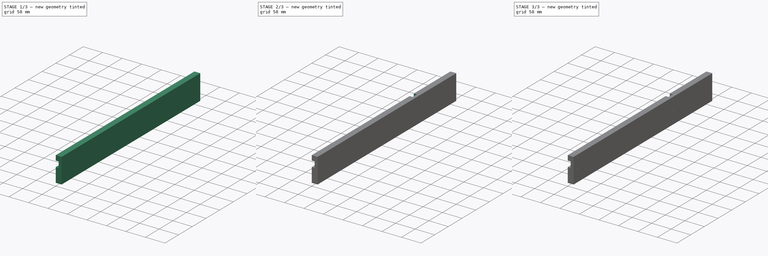
[diagram: build sequence overview — one tinted view per stage of 3, left to right]
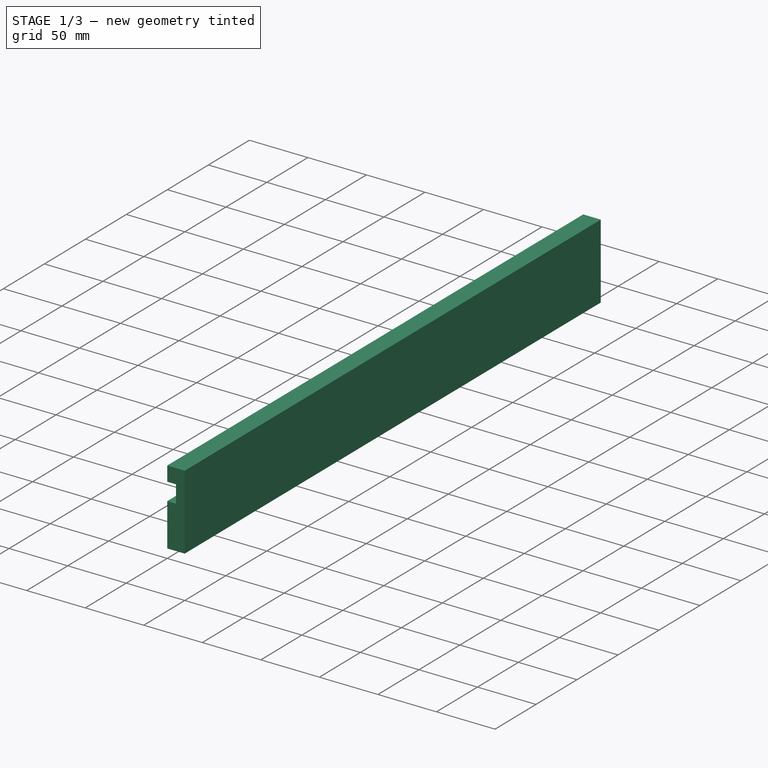
[diagram: stage 1 of 3 — iso view after this stage's code; geometry added in this stage tinted green]
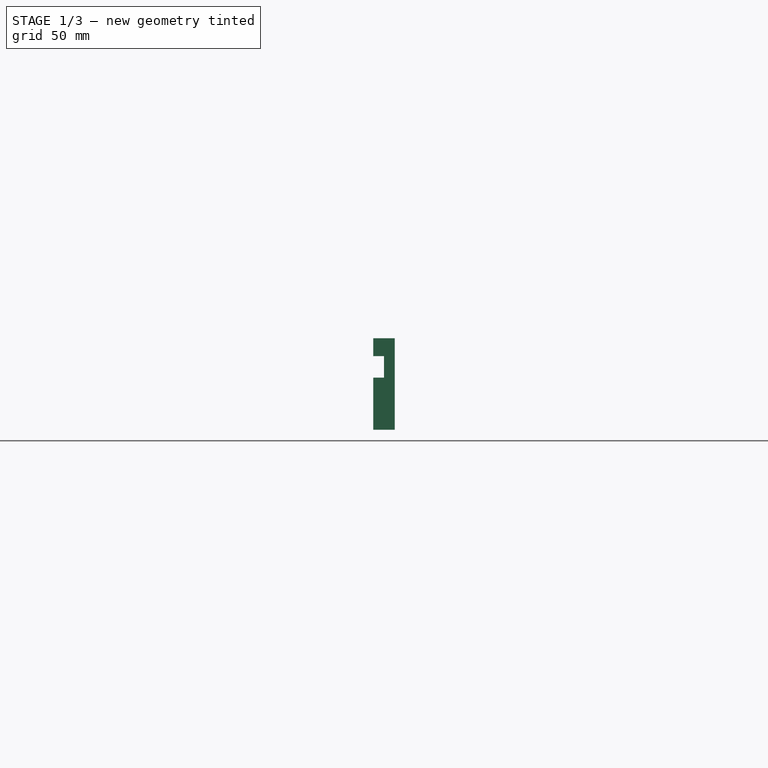
[diagram: stage 1 of 3 — front view after this stage's code; geometry added in this stage tinted green]
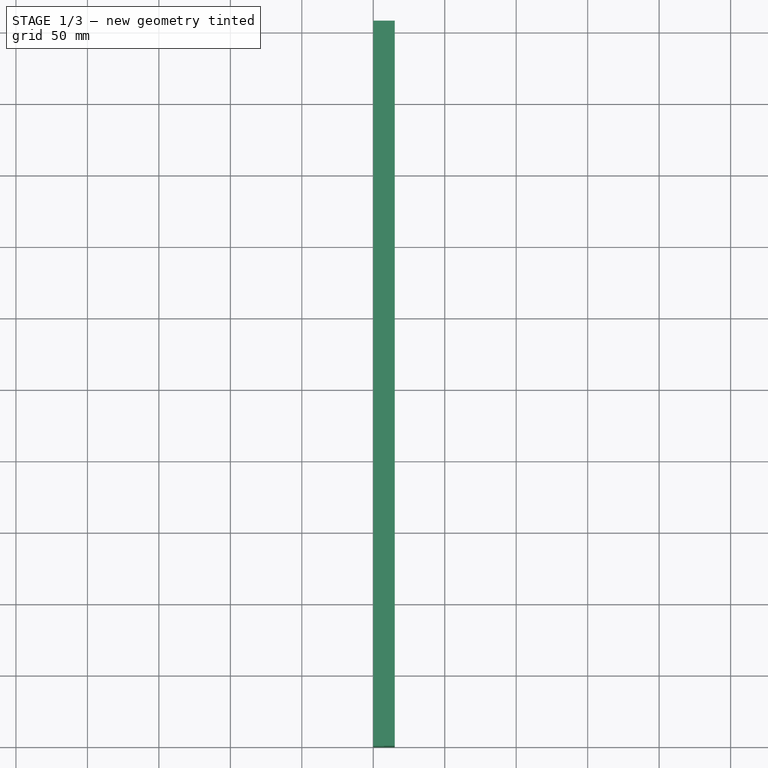
[diagram: stage 1 of 3 — top view after this stage's code; geometry added in this stage tinted green]
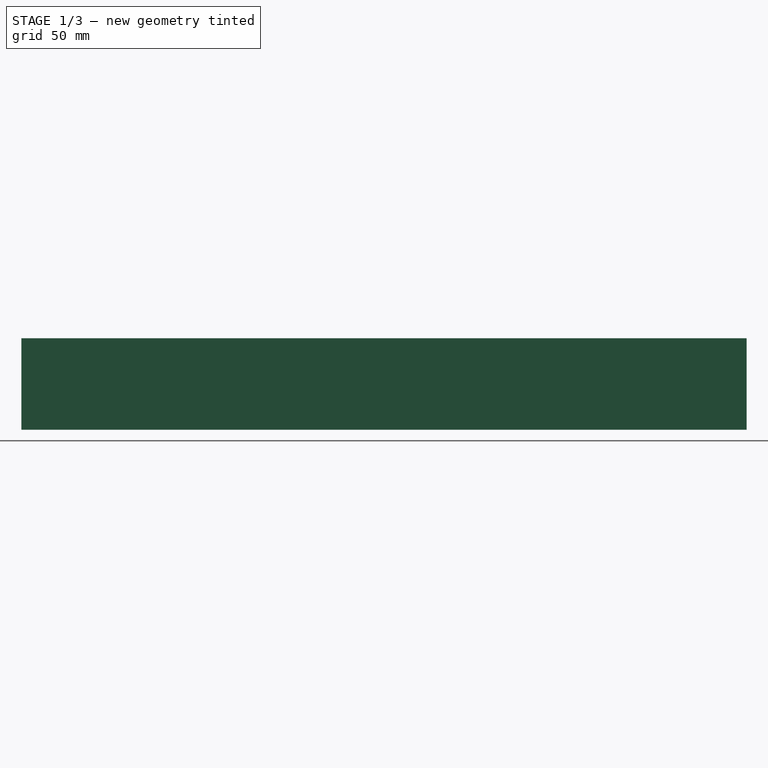
[diagram: stage 1 of 3 — right view after this stage's code; geometry added in this stage tinted green]
FCSTD DOCUMENT  (FreeCAD 0.19R24291 (Git))
Label: OuterRightWall
License: All rights reserved
LicenseURL: http://en.wikipedia.org/wiki/All_rights_reserved
objects: Sketcher::SketchObject×7, PartDesign::Pocket×6, PartDesign::CoordinateSystem×2, App::FeaturePython×1, PartDesign::Pad×1, PartDesign::LinearPattern×1, PartDesign::MultiTransform×1, PartDesign::Body×1, App::Part×1
note: 26 computed .brp shape members not serialized (recipe doc carries the construction recipe); baked Part::Feature solids carry a one-line shape summary decoded from their .brp

FEATURE [PartDesign::CoordinateSystem] LCS_0
  AttacherType = Attacher::AttachEngine3D
  MapMode = 2
  Support = -> [X_Axis]
FEATURE [PartDesign::CoordinateSystem] LCS_0001
  AttacherType = Attacher::AttachEngine3D
  MapMode = 2
  Support = -> [X_Axis001]
FEATURE [Sketcher::SketchObject] Sketch
  FullyConstrained = true
  MapMode = 5
  Placement = pos=(0,0,0) rot=(0.57735,0.57735,0.57735;2.0944rad)
  Support = -> [YZ_Plane001]
  expr: Constraints[10] = <<Attributes>>.DrawerHeight_DH
  expr: Constraints[9] = <<Attributes>>.DrawerDepth_DD + <<Attributes>>.WallThickness_WT / 2
  sketch-geometry (4):
    g0: LineSegment StartX=0 StartY=0 StartZ=0 EndX=507.5 EndY=0 EndZ=0
    g1: LineSegment StartX=507.5 StartY=0 StartZ=0 EndX=507.5 EndY=64 EndZ=0
    g2: LineSegment StartX=507.5 StartY=64 StartZ=0 EndX=0 EndY=64 EndZ=0
    g3: LineSegment StartX=0 StartY=64 StartZ=0 EndX=0 EndY=0 EndZ=0
  constraints (11):
    c: Coincident(g0,g1)
    c: Coincident(g1,g2)
    c: Coincident(g2,g3)
    c: Coincident(g3,g0)
    c: Horizontal(g0)
    c: Horizontal(g2)
    c: Vertical(g1)
    c: Vertical(g3)
    c: Coincident(g0,g-1)
    c: Distance(g0) = 507.5
    c: DistanceY(g0,g2) = 64
FEATURE [App::FeaturePython] PropertyBag  label="Attributes"  # WARN: FeaturePython — macro-defined, semantics opaque (R4)
  BackWidth = 395.8
  Back_Space = 134.2
  BottomDepth = 365.8
  BottomWidth = 365.8
  Bottom_Height_BH = 4
  Bottom_Space_Height = 20
  Box_Tolerance = 0.2
  Boxes_Depth = 5
  Boxes_Height = 40
  Boxes_Width = 5
  CableChannelHight = 15
  CableChannelRadius = 2
  CustomPropertyGroups = shape | attributes
  DrawerDepth_DD = 500
  DrawerHeight_DH = 64
  DrawerWidth_DW = 410.8
  InnerWallDepth = 358.3
  ScrewPreWhole = 3
  ScrewPreWholeDepth = 20
  WallThickness_WT = 15
  expr: BottomDepth = Boxes_Depth * 70mm + WallThickness_WT + Box_Tolerance * (Boxes_Width - 1)
  expr: DrawerHeight_DH = Boxes_Height + Bottom_Height_BH + Bottom_Space_Height
  expr: BackWidth = DrawerWidth_DW - WallThickness_WT
  expr: DrawerWidth_DW = Boxes_Width * 70mm + WallThickness_WT * 4 + Box_Tolerance * (Boxes_Width - 1)
  expr: BottomWidth = Boxes_Width * 70mm + WallThickness_WT + Box_Tolerance * (Boxes_Width - 1)
  expr: DrawerDepth_DD = Boxes_Depth * 70mm + WallThickness_WT + Back_Space + Box_Tolerance * (Boxes_Width - 1)
  expr: InnerWallDepth = Boxes_Depth * 70mm + WallThickness_WT * 0.5 + Box_Tolerance * (Boxes_Width - 1)
FEATURE [PartDesign::Pad] Pad
  Direction = (1,1,1)
  Length = 15
  Length2 = 100
  Placement = pos=(0,0,0) rot=(0.57735,0.57735,0.57735;2.0944rad)
  Profile = -> Sketch
  Type = 0
  expr: Length = <<Attributes>>.WallThickness_WT
FEATURE [Sketcher::SketchObject] Sketch001
  FullyConstrained = true
  MapMode = 5
  Placement = pos=(-6.34e-14,0,0) rot=(0.57735,0.57735,-0.57735;4.18879rad)
  Support = -> [Pad]
  expr: Constraints[17] = (<<Attributes>>.DrawerHeight_DH - <<Attributes>>.WallThickness_WT - <<Attributes>>.Bottom_Space_Height - <<Attributes>>.Bottom_Height_BH) / 2
  expr: Constraints[16] = <<Attributes>>.DrawerHeight_DH - <<Attributes>>.WallThickness_WT / 2
  expr: Constraints[7] = <<Attributes>>.DrawerDepth_DD + <<Attributes>>.WallThickness_WT / 2
  expr: Constraints[6] = <<Attributes>>.CableChannelHight
  sketch-geometry (6):
    g0: LineSegment StartX=0 StartY=-36.5 StartZ=0 EndX=507.5 EndY=-36.5 EndZ=0
    g1: LineSegment StartX=507.5 StartY=-36.5 StartZ=0 EndX=507.5 EndY=-51.5 EndZ=0
    g2: LineSegment StartX=507.5 StartY=-51.5 StartZ=0 EndX=0 EndY=-51.5 EndZ=0
    g3: LineSegment StartX=0 StartY=-51.5 StartZ=0 EndX=0 EndY=-44 EndZ=0
    g4: LineSegment StartX=0 StartY=-44 StartZ=0 EndX=0 EndY=-36.5 EndZ=0
    g5: LineSegment StartX=0 StartY=0 StartZ=0 EndX=0 EndY=-56.5 EndZ=0
  constraints (18):
    c: Coincident(g0,g1)
    c: Coincident(g1,g2)
    c: Horizontal(g0)
    c: Horizontal(g2)
    c: Vertical(g1)
    c: PointOnObject(g0,g-2)
    c: DistanceY(g2,g0) = 15
    c: DistanceX(g0,g0) = 507.5
    c: Coincident(g2,g3)
    c: Vertical(g3)
    c: Coincident(g3,g4)
    c: Coincident(g4,g0)
    c: Vertical(g4)
    c: Equal(g3,g4)
    c: Coincident(g5,g-1)
    c: Vertical(g5)
    c: Distance(g5) = 56.5
    c: DistanceY(g5,g3) = 12.5
FEATURE [PartDesign::Pocket] Pocket
  BaseFeature = -> Pad
  Length = 7.5
  Length2 = 100
  Placement = pos=(0,0,0) rot=(0.57735,0.57735,0.57735;2.0944rad)
  Profile = -> Sketch001
  Type = 0
  expr: Length = <<Attributes>>.WallThickness_WT / 2
FEATURE [Sketcher::SketchObject] Sketch002
  FullyConstrained = true
  MapMode = 5
  Placement = pos=(-1.269e-13,0,0) rot=(-0.57735,-0.57735,0.57735;2.0944rad)
  Support = -> [Pocket]
  expr: Constraints[23] = (<<Attributes>>.WallThickness_WT / 2 + 70mm + <<Attributes>>.Box_Tolerance / 2) / 2 - <<Attributes>>.CableChannelHight / 2
  expr: Constraints[22] = <<Attributes>>.DrawerHeight_DH - <<Attributes>>.WallThickness_WT / 2 - (<<Attributes>>.DrawerHeight_DH - <<Attributes>>.WallThickness_WT - <<Attributes>>.Bottom_Space_Height - <<Attributes>>.Bottom_Height_BH) / 2 - <<Attributes>>.CableChannelHight / 2
  expr: Constraints[21] = <<Attributes>>.CableChannelRadius
  expr: Constraints[6] = <<Attributes>>.CableChannelHight
  sketch-geometry (8):
    g0: LineSegment StartX=31.3 StartY=0 StartZ=0 EndX=46.3 EndY=0 EndZ=0
    g1: LineSegment StartX=46.3 StartY=0 StartZ=0 EndX=46.3 EndY=-34.5 EndZ=0
    g2: LineSegment StartX=31.3 StartY=-34.5 StartZ=0 EndX=31.3 EndY=0 EndZ=0
    g3: ArcOfCircle CenterX=29.3 CenterY=-34.5 CenterZ=0 NormalX=0 NormalY=0 NormalZ=1 AngleXU=0 Radius=2 StartAngle=4.71239 EndAngle=6.28319
    g4: ArcOfCircle CenterX=48.3 CenterY=-34.5 CenterZ=0 NormalX=0 NormalY=0 NormalZ=1 AngleXU=0 Radius=2 StartAngle=3.14159 EndAngle=4.71239
    g5: LineSegment StartX=46.3 StartY=-34.5 StartZ=0 EndX=48.3 EndY=-34.5 EndZ=0
    g6: LineSegment StartX=29.3 StartY=-34.5 StartZ=0 EndX=31.3 EndY=-34.5 EndZ=0
    g7: LineSegment StartX=29.3 StartY=-36.5 StartZ=0 EndX=48.3 EndY=-36.5 EndZ=0
  constraints (24):
    c: Coincident(g0,g1)
    c: Coincident(g2,g0)
    c: Horizontal(g0)
    c: Vertical(g1)
    c: Vertical(g2)
    c: PointOnObject(g0,g-1)
    c: Distance(g0) = 15
    c: Coincident(g3,g2)
    c: Coincident(g4,g1)
    c: Angle(g4) = 1.5708
    c: Angle(g3) = 1.5708
    c: Coincident(g5,g1)
    c: Coincident(g5,g4)
    c: Perpendicular(g1,g5)
    c: Coincident(g6,g3)
    c: Coincident(g6,g2)
    c: Perpendicular(g2,g6)
    c: Equal(g6,g5)
    c: Coincident(g7,g3)
    c: Horizontal(g7)
    c: Coincident(g7,g4)
    c: Radius(g3) = 2
    c: DistanceY(g3,g0) = 36.5
    c: DistanceX(g-1,g0) = 31.3
FEATURE [PartDesign::Pocket] Pocket001
  BaseFeature = -> Pocket
  Length = 3.75
  Length2 = 100
  Placement = pos=(0,0,0) rot=(0.57735,0.57735,0.57735;2.0944rad)
  Profile = -> Sketch002
  Type = 0
  expr: Length = <<Attributes>>.WallThickness_WT / 4
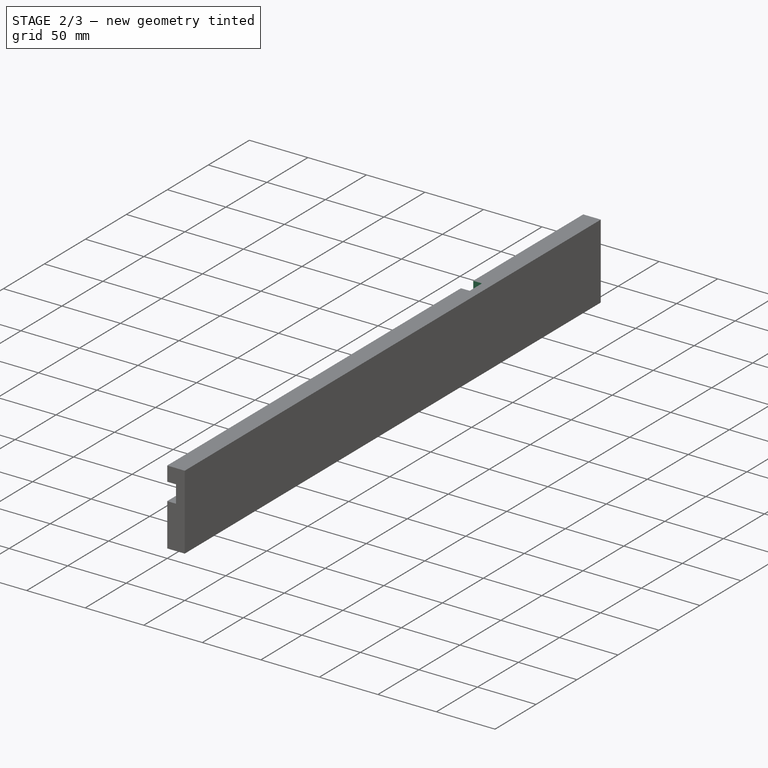
[diagram: stage 2 of 3 — iso view after this stage's code; geometry added in this stage tinted green]
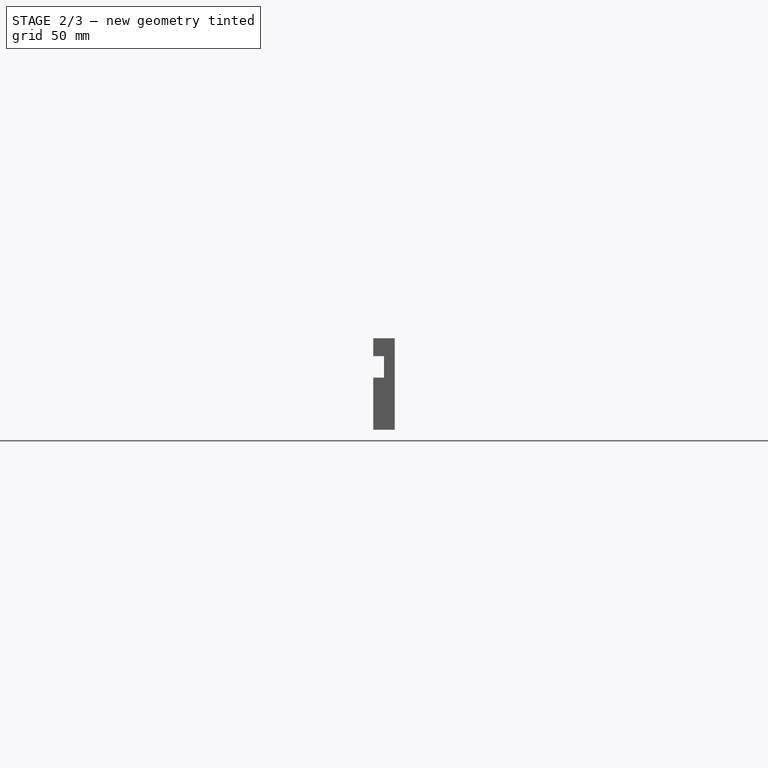
[diagram: stage 2 of 3 — front view after this stage's code; geometry added in this stage tinted green]
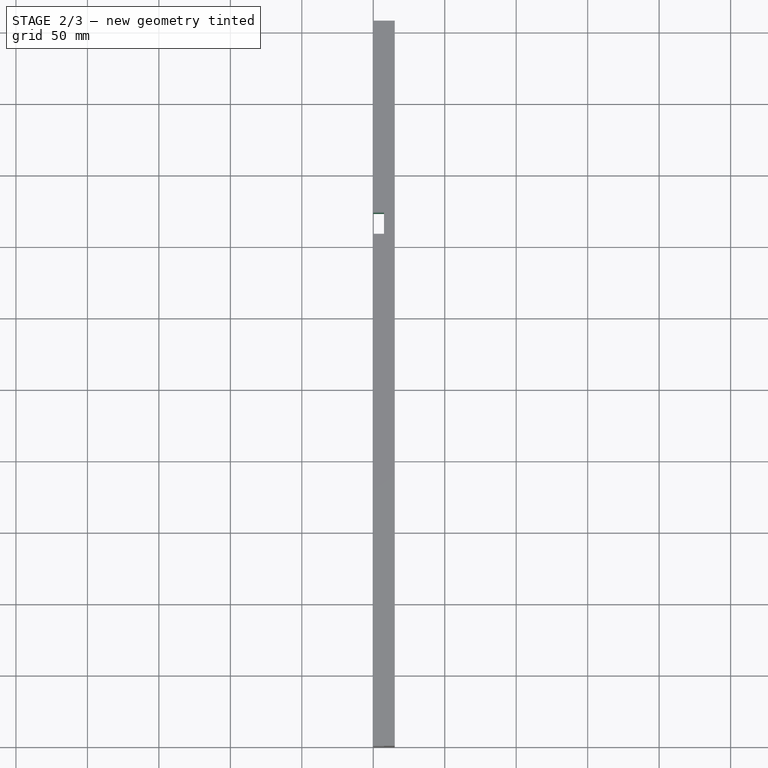
[diagram: stage 2 of 3 — top view after this stage's code; geometry added in this stage tinted green]
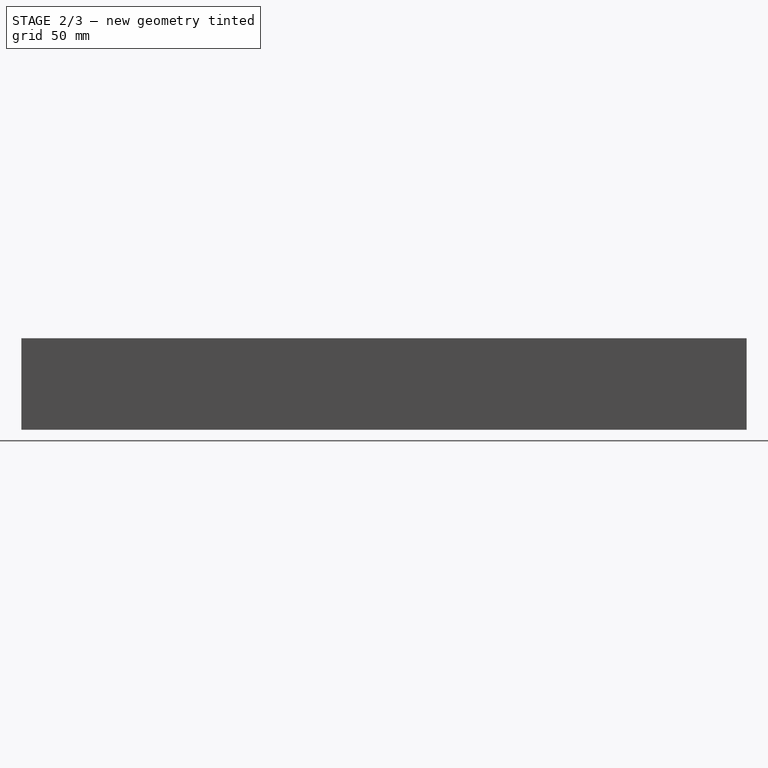
[diagram: stage 2 of 3 — right view after this stage's code; geometry added in this stage tinted green]
FEATURE [PartDesign::LinearPattern] LinearPattern
  Direction = -> Sketch002 [H_Axis]
  Length = 280.8
  Occurrences = 5
  Placement = pos=(0,0,0) rot=(0.57735,0.57735,0.57735;2.0944rad)
  expr: Length = (<<Attributes>>.Boxes_Depth - 1) * (70mm + <<Attributes>>.Box_Tolerance)
  expr: Occurrences = <<Attributes>>.Boxes_Depth
FEATURE [PartDesign::MultiTransform] MultiTransform
  BaseFeature = -> Pocket001
  Originals = -> [Pocket001]
  Placement = pos=(0,0,0) rot=(0.57735,0.57735,0.57735;2.0944rad)
  Transformations = -> [LinearPattern]
FEATURE [Sketcher::SketchObject] Sketch003
  FullyConstrained = true
  MapMode = 5
  Placement = pos=(-1.903e-13,0,0) rot=(-0.57735,-0.57735,0.57735;2.0944rad)
  Support = -> [MultiTransform]
  expr: Constraints[10] = <<Attributes>>.InnerWallDepth
  expr: Constraints[9] = <<Attributes>>.DrawerHeight_DH
  expr: Constraints[11] = <<Attributes>>.WallThickness_WT + <<Attributes>>.InnerWallDepth
  sketch-geometry (4):
    g0: LineSegment StartX=358.3 StartY=0 StartZ=0 EndX=373.3 EndY=0 EndZ=0
    g1: LineSegment StartX=373.3 StartY=0 StartZ=0 EndX=373.3 EndY=-64 EndZ=0
    g2: LineSegment StartX=373.3 StartY=-64 StartZ=0 EndX=358.3 EndY=-64 EndZ=0
    g3: LineSegment StartX=358.3 StartY=-64 StartZ=0 EndX=358.3 EndY=0 EndZ=0
  constraints (12):
    c: Coincident(g0,g1)
    c: Coincident(g1,g2)
    c: Coincident(g2,g3)
    c: Coincident(g3,g0)
    c: Horizontal(g0)
    c: Horizontal(g2)
    c: Vertical(g1)
    c: Vertical(g3)
    c: PointOnObject(g0,g-1)
    c: DistanceY(g2,g0) = 64
    c: DistanceX(g-1,g0) = 358.3
    c: DistanceX(g-1,g0) = 373.3
FEATURE [PartDesign::Pocket] Pocket002
  BaseFeature = -> MultiTransform
  Length = 7.5
  Length2 = 100
  Placement = pos=(0,0,0) rot=(0.57735,0.57735,0.57735;2.0944rad)
  Profile = -> Sketch003
  Type = 0
  expr: Length = <<Attributes>>.WallThickness_WT / 2
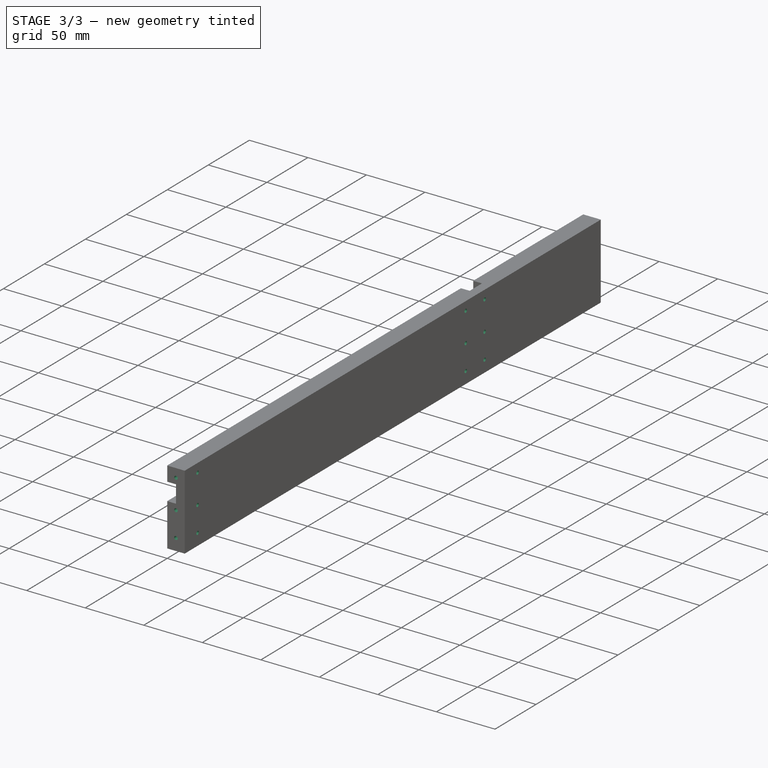
[diagram: stage 3 of 3 — iso view after this stage's code; geometry added in this stage tinted green]
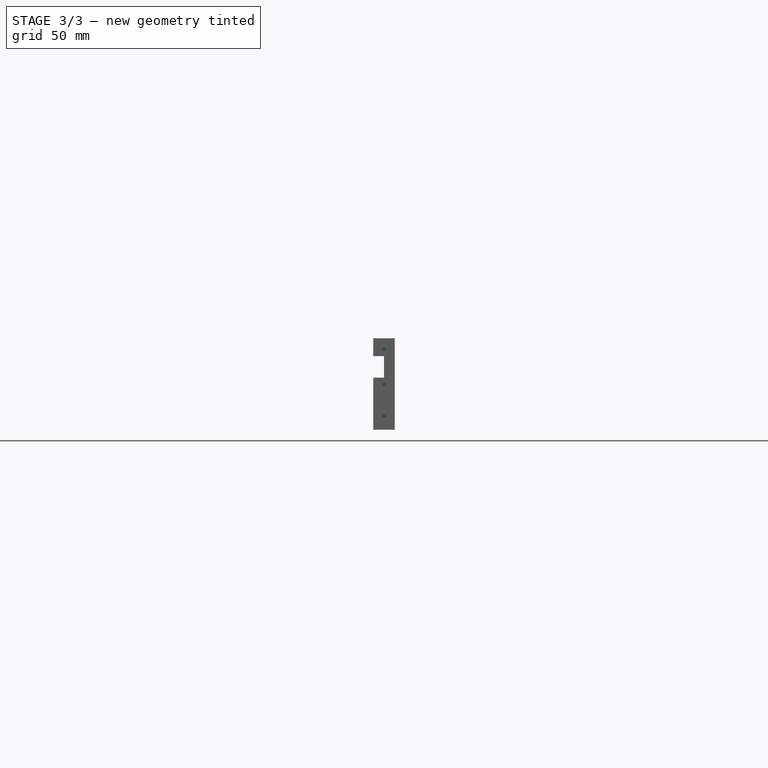
[diagram: stage 3 of 3 — front view after this stage's code; geometry added in this stage tinted green]
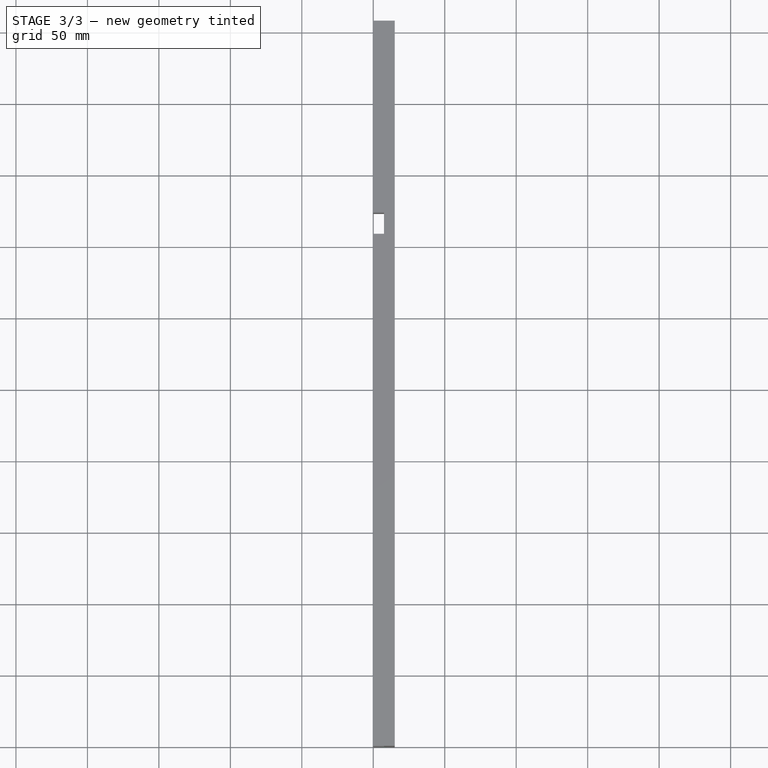
[diagram: stage 3 of 3 — top view after this stage's code; geometry added in this stage tinted green]
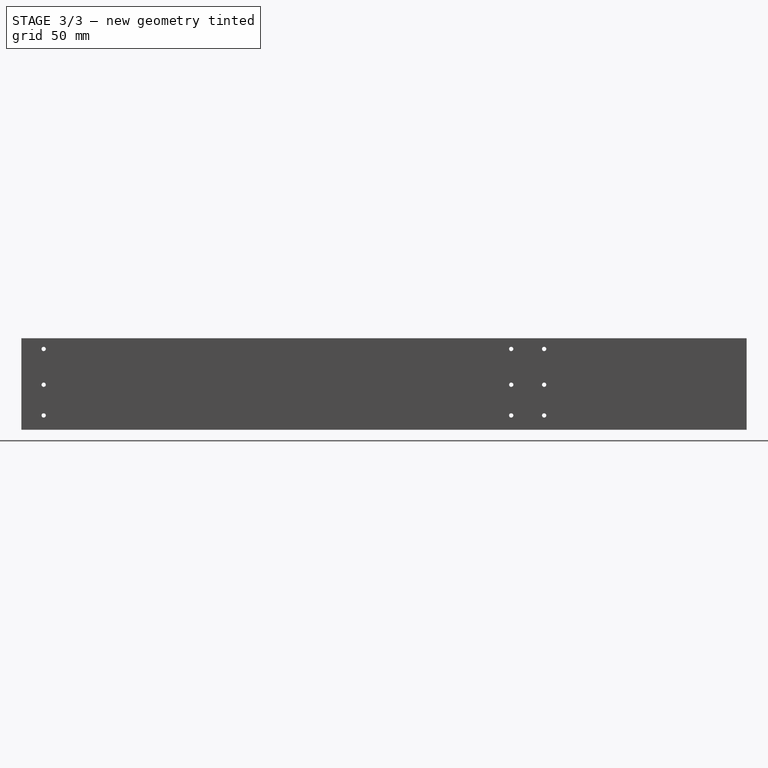
[diagram: stage 3 of 3 — right view after this stage's code; geometry added in this stage tinted green]
FEATURE [Sketcher::SketchObject] Sketch004
  FullyConstrained = true
  MapMode = 5
  Placement = pos=(-2.538e-13,0,0) rot=(-0.57735,-0.57735,0.57735;2.0944rad)
  Support = -> [Pocket002]
  expr: Constraints[12] = <<Attributes>>.DrawerHeight_DH - <<Attributes>>.WallThickness_WT - <<Attributes>>.Bottom_Space_Height - <<Attributes>>.Bottom_Height_BH
  expr: Constraints[11] = <<Attributes>>.ScrewPreWhole / 2
  expr: Constraints[5] = <<Attributes>>.InnerWallDepth + <<Attributes>>.WallThickness_WT / 2
  expr: Constraints[4] = <<Attributes>>.Bottom_Space_Height / 2
  expr: Constraints[3] = <<Attributes>>.DrawerHeight_DH - <<Attributes>>.WallThickness_WT / 2
  sketch-geometry (5):
    g0: LineSegment StartX=365.8 StartY=-10 StartZ=0 EndX=365.8 EndY=-31.5 EndZ=0
    g1: LineSegment StartX=365.8 StartY=-31.5 StartZ=0 EndX=365.8 EndY=-56.5 EndZ=0
    g2: Circle CenterX=365.8 CenterY=-10 CenterZ=0 NormalX=0 NormalY=0 NormalZ=1 AngleXU=0 Radius=1.5
    g3: Circle CenterX=365.8 CenterY=-31.5 CenterZ=0 NormalX=0 NormalY=0 NormalZ=1 AngleXU=0 Radius=1.5
    g4: Circle CenterX=365.8 CenterY=-56.5 CenterZ=0 NormalX=0 NormalY=0 NormalZ=1 AngleXU=0 Radius=1.5
  constraints (13):
    c: Coincident(g0,g1)
    c: Vertical(g1)
    c: Vertical(g0)
    c: DistanceY(g1,g-1) = 56.5
    c: DistanceY(g0,g-1) = 10
    c: DistanceX(g-1,g0) = 365.8
    c: Coincident(g2,g0)
    c: Coincident(g3,g0)
    c: Coincident(g4,g1)
    c: Equal(g4,g3)
    c: Equal(g3,g2)
    c: Radius(g2) = 1.5
    c: DistanceY(g1,g1) = 25
FEATURE [PartDesign::Pocket] Pocket003
  BaseFeature = -> Pocket002
  Length = 5
  Length2 = 100
  Midplane = true
  Placement = pos=(0,0,0) rot=(0.57735,0.57735,0.57735;2.0944rad)
  Profile = -> Sketch004
  Type = 1
FEATURE [Sketcher::SketchObject] Sketch005
  FullyConstrained = true
  MapMode = 5
  Placement = pos=(0,-5.68e-14,0) rot=(0.57735,0.57735,-0.57735;2.0944rad)
  Support = -> [Pocket003]
  expr: Constraints[3] = <<Attributes>>.WallThickness_WT / 2
  expr: Constraints[4] = <<Attributes>>.Bottom_Space_Height / 2
  expr: Constraints[5] = <<Attributes>>.DrawerHeight_DH - <<Attributes>>.WallThickness_WT / 2
  expr: Constraints[11] = <<Attributes>>.ScrewPreWhole / 2
  expr: Constraints[12] = <<Attributes>>.DrawerHeight_DH - <<Attributes>>.WallThickness_WT - <<Attributes>>.Bottom_Space_Height - <<Attributes>>.Bottom_Height_BH
  sketch-geometry (5):
    g0: LineSegment StartX=-10 StartY=7.5 StartZ=0 EndX=-31.5 EndY=7.5 EndZ=0
    g1: LineSegment StartX=-31.5 StartY=7.5 StartZ=0 EndX=-56.5 EndY=7.5 EndZ=0
    g2: Circle CenterX=-56.5 CenterY=7.5 CenterZ=0 NormalX=0 NormalY=0 NormalZ=1 AngleXU=0 Radius=1.5
    g3: Circle CenterX=-31.5 CenterY=7.5 CenterZ=0 NormalX=0 NormalY=0 NormalZ=1 AngleXU=0 Radius=1.5
    g4: Circle CenterX=-10 CenterY=7.5 CenterZ=0 NormalX=0 NormalY=0 NormalZ=1 AngleXU=0 Radius=1.5
  constraints (13):
    c: Horizontal(g0)
    c: Coincident(g0,g1)
    c: Horizontal(g1)
    c: DistanceY(g-1,g0) = 7.5
    c: DistanceX(g0,g-1) = 10
    c: DistanceX(g1,g-1) = 56.5
    c: Coincident(g2,g1)
    c: Coincident(g3,g0)
    c: Coincident(g4,g0)
    c: Equal(g4,g3)
    c: Equal(g3,g2)
    c: Radius(g2) = 1.5
    c: Distance(g1) = 25
FEATURE [PartDesign::Pocket] Pocket004
  BaseFeature = -> Pocket003
  Length = 20
  Length2 = 100
  Placement = pos=(0,0,0) rot=(0.57735,0.57735,0.57735;2.0944rad)
  Profile = -> Sketch005
  Type = 0
  expr: Length = <<Attributes>>.ScrewPreWholeDepth
FEATURE [Sketcher::SketchObject] Sketch006
  FullyConstrained = true
  MapMode = 5
  Placement = pos=(-3.172e-13,0,0) rot=(-0.57735,-0.57735,0.57735;2.0944rad)
  Support = -> [Pocket003]
  expr: Constraints[8] = <<Attributes>>.DrawerHeight_DH - <<Attributes>>.WallThickness_WT - <<Attributes>>.Bottom_Space_Height - <<Attributes>>.Bottom_Height_BH
  expr: Constraints[9] = <<Attributes>>.Bottom_Space_Height / 2
  expr: Constraints[10] = <<Attributes>>.DrawerHeight_DH - <<Attributes>>.WallThickness_WT / 2
  expr: Constraints[11] = <<Attributes>>.ScrewPreWhole / 2
  expr: Constraints[12] = ((<<Attributes>>.WallThickness_WT / 2 + 70mm + <<Attributes>>.Box_Tolerance / 2) / 2 - <<Attributes>>.CableChannelHight / 2) / 2
  expr: Constraints[25] = (<<Attributes>>.WallThickness_WT / 2 + 70mm + <<Attributes>>.Box_Tolerance / 2) / 2 - <<Attributes>>.CableChannelHight / 2 + <<Attributes>>.CableChannelHight / 2 + (<<Attributes>>.Box_Tolerance + 70mm) * (<<Attributes>>.Boxes_Depth - 1) + ((<<Attributes>>.WallThickness_WT / 2 + 70mm + <<Attributes>>.Box_Tolerance / 2) / 2 - <<Attributes>>.CableChannelHight / 2) / 2 + <<Attributes>>.CableChannelHight / 2
  sketch-geometry (10):
    g0: LineSegment StartX=15.65 StartY=-10 StartZ=0 EndX=15.65 EndY=-31.5 EndZ=0
    g1: LineSegment StartX=15.65 StartY=-31.5 StartZ=0 EndX=15.65 EndY=-56.5 EndZ=0
    g2: Circle CenterX=15.65 CenterY=-10 CenterZ=0 NormalX=0 NormalY=0 NormalZ=1 AngleXU=0 Radius=1.5
    g3: Circle CenterX=15.65 CenterY=-31.5 CenterZ=0 NormalX=0 NormalY=0 NormalZ=1 AngleXU=0 Radius=1.5
    g4: Circle CenterX=15.65 CenterY=-56.5 CenterZ=0 NormalX=0 NormalY=0 NormalZ=1 AngleXU=0 Radius=1.5
    g5: LineSegment StartX=342.75 StartY=-10 StartZ=0 EndX=342.75 EndY=-31.5 EndZ=0
    g6: LineSegment StartX=342.75 StartY=-31.5 StartZ=0 EndX=342.75 EndY=-56.5 EndZ=0
    g7: Circle CenterX=342.75 CenterY=-10 CenterZ=0 NormalX=0 NormalY=0 NormalZ=1 AngleXU=0 Radius=1.5
    g8: Circle CenterX=342.75 CenterY=-31.5 CenterZ=0 NormalX=0 NormalY=0 NormalZ=1 AngleXU=0 Radius=1.5
    g9: Circle CenterX=342.75 CenterY=-56.5 CenterZ=0 NormalX=0 NormalY=0 NormalZ=1 AngleXU=0 Radius=1.5
  constraints (26):
    c: Vertical(g0)
    c: Coincident(g0,g1)
    c: Vertical(g1)
    c: Coincident(g2,g0)
    c: Coincident(g3,g0)
    c: Coincident(g4,g1)
    c: Equal(g4,g3)
    c: Equal(g3,g2)
    c: Distance(g1) = 25
    c: DistanceY(g0,g-1) = 10
    c: DistanceY(g1,g-1) = 56.5
    c: Radius(g2) = 1.5
    c: DistanceX(g-1,g0) = 15.65
    c: Vertical(g5)
    c: Coincident(g5,g6)
    c: Vertical(g6)
    c: Coincident(g7,g5)
    c: Coincident(g8,g5)
    c: Coincident(g9,g6)
    c: Equal(g9,g8)
    c: Equal(g8,g7)
    c: Equal(g1,g6) = 25
    c: Equal(g2,g7) = 1.5
    c: Horizontal(g9,g4)
    c: Horizontal(g7,g2)
    c: DistanceX(g-1,g7) = 342.75
FEATURE [PartDesign::Pocket] Pocket005
  BaseFeature = -> Pocket004
  Length = 5
  Length2 = 100
  Placement = pos=(0,0,0) rot=(0.57735,0.57735,0.57735;2.0944rad)
  Profile = -> Sketch006
  Type = 1
FEATURE [PartDesign::Body] OuterRightWall001
  Group = -> [LCS_0001,Sketch,Pad,Sketch001,Pocket,Sketch002,Pocket001,MultiTransform,LinearPattern,Sketch003,Pocket002,Sketch004,Pocket003,Sketch005,Pocket004,Sketch006,Pocket005]
  Origin = -> Origin001
  Tip = -> Pocket005
FEATURE [App::Part] OuterRightWall
  Group = -> [LCS_0,OuterRightWall001,PropertyBag]
  Origin = -> Origin
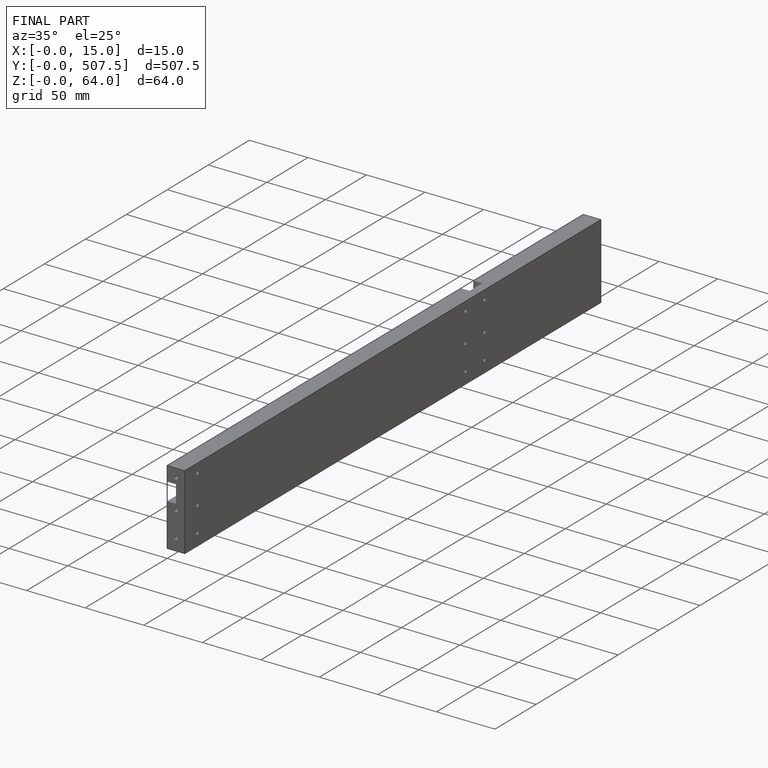
[diagram: finished part — iso view with bounding-box wireframe]
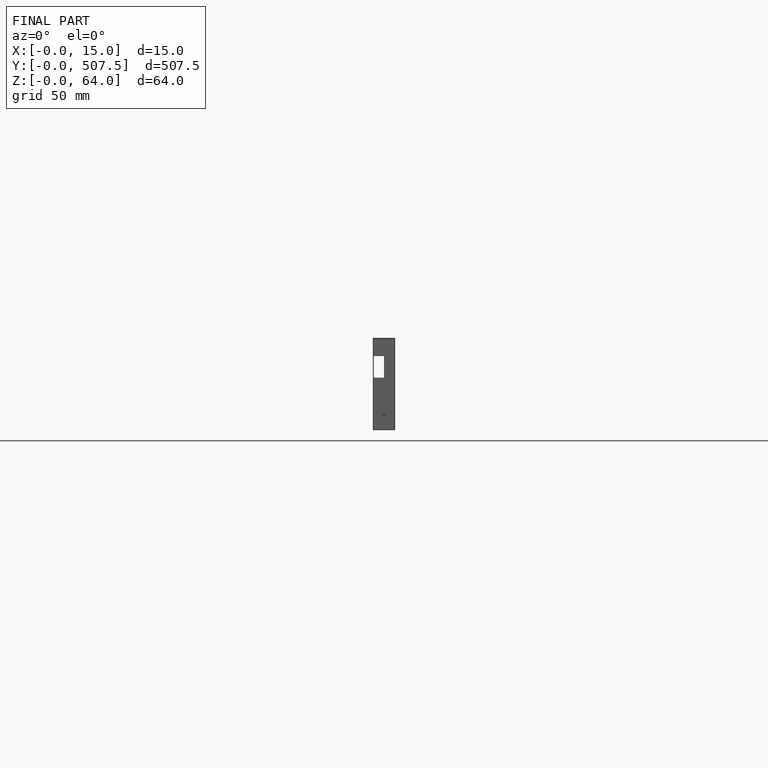
[diagram: finished part — front view with bounding-box wireframe]
